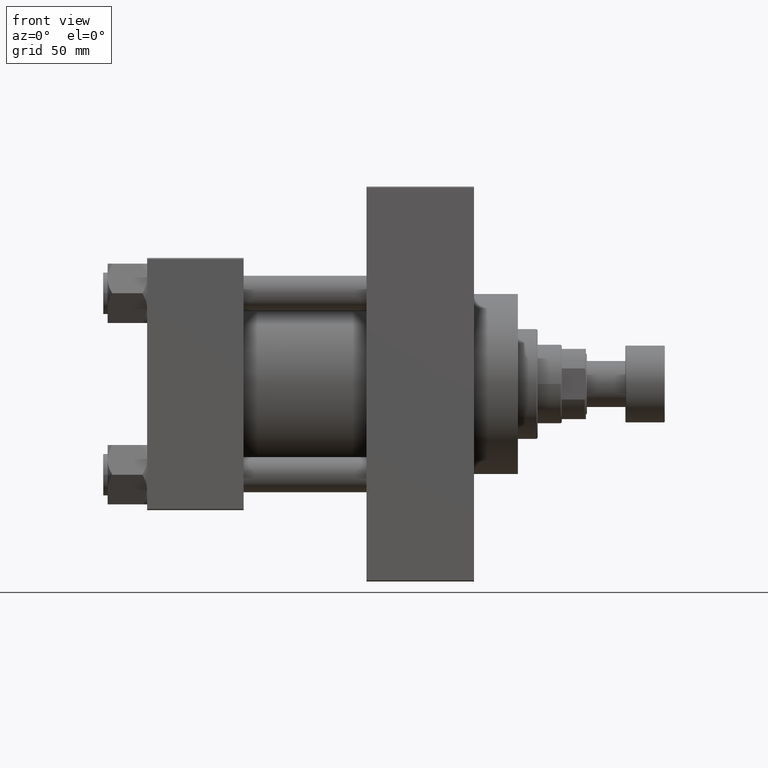
[diagram: clean part render]
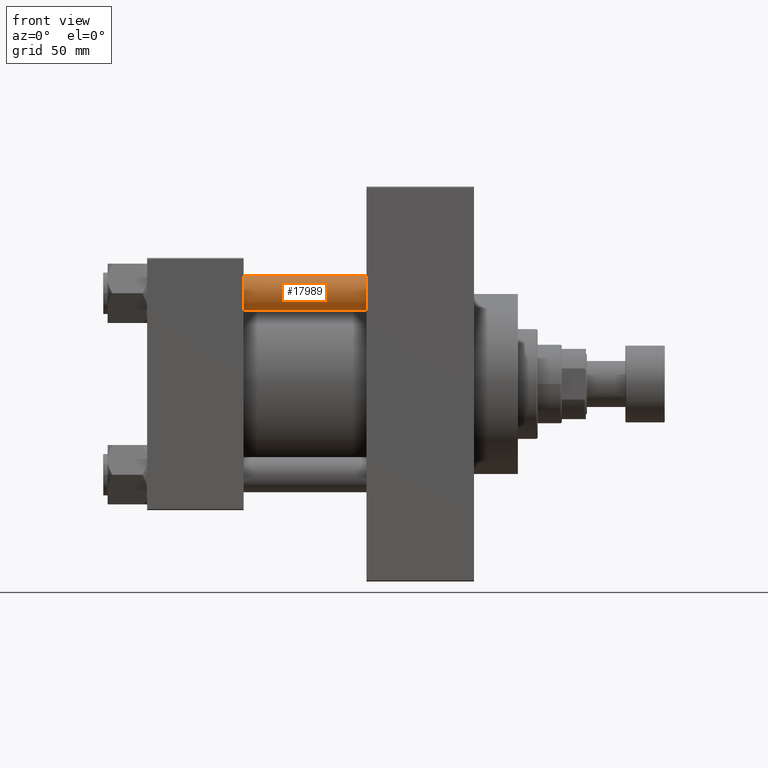
[diagram: same view with one face highlighted and labeled with its STEP entity id]
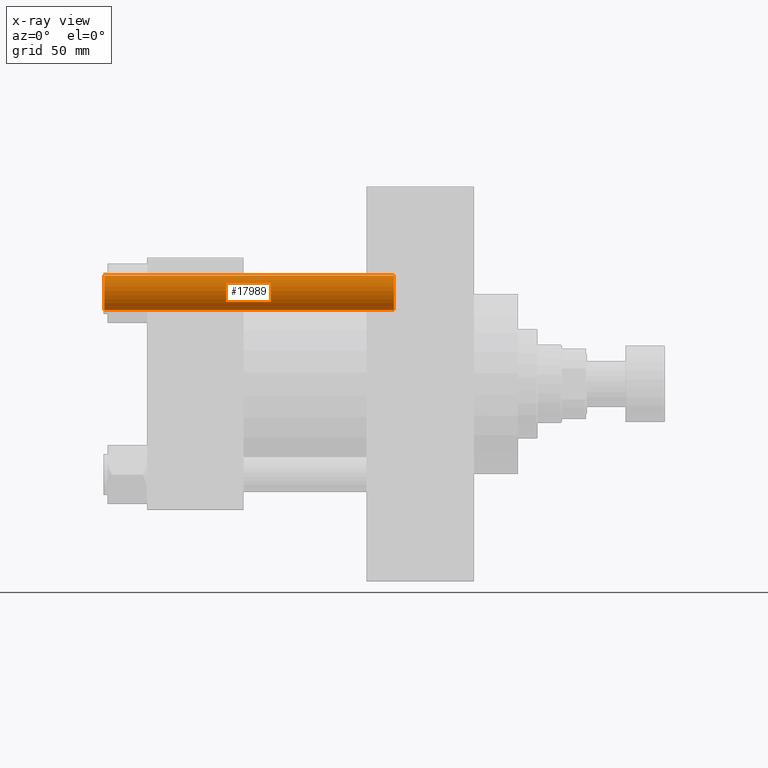
[diagram: x-ray of the same camera — body ghosted, the highlighted face saturated]
A machine part, front view. The second image highlights one B-rep face of the part: STEP entity #17989.
The next image is the same camera in x-ray: the body ghosted, the highlighted face saturated — about 0% of this face is hidden behind the body in this view.
In plain terms, the highlighted cylindrical surface (edge-blend (fillet) strip) has radius 8 mm, axis along (1, 0, 0).
Its self-contained STEP definition (entity closure, byte-faithful):
#3568 = VECTOR ( 'NONE', #43249, 1000.000000000000000 ) ;
#3967 = ORIENTED_EDGE ( 'NONE', *, *, #5943, .T. ) ;
#4111 = AXIS2_PLACEMENT_3D ( 'NONE', #20621, #13575, #24747 ) ;
#4112 = ORIENTED_EDGE ( 'NONE', *, *, #16811, .F. ) ;
#5048 = CYLINDRICAL_SURFACE ( 'NONE', #47881, 8.000000000000000000 ) ;
#5943 = EDGE_CURVE ( 'NONE', #8402, #23435, #13938, .T. ) ;
#6880 = CARTESIAN_POINT ( 'NONE',  ( 8.000000000000000000, 9.797174393178825657E-16, 133.0000000000000000 ) ) ;
#6985 = CARTESIAN_POINT ( 'NONE',  ( -8.000000000000000000, 0.000000000000000000, 133.0000000000000000 ) ) ;
#7716 = CARTESIAN_POINT ( 'NONE',  ( -8.000000000000000000, 0.000000000000000000, 132.5000000000000284 ) ) ;
#8288 = VERTEX_POINT ( 'NONE', #20028 ) ;
#8402 = VERTEX_POINT ( 'NONE', #14433 ) ;
#13111 = DIRECTION ( 'NONE',  ( 1.000000000000000000, 0.000000000000000000, 0.000000000000000000 ) ) ;
#13328 = DIRECTION ( 'NONE',  ( -1.000000000000000000, 0.000000000000000000, 0.000000000000000000 ) ) ;
#13450 = CARTESIAN_POINT ( 'NONE',  ( 8.000000000000000000, 9.797174393178825657E-16, 0.5000000000000004441 ) ) ;
#13575 = DIRECTION ( 'NONE',  ( -0.000000000000000000, -0.000000000000000000, 1.000000000000000000 ) ) ;
#13760 = AXIS2_PLACEMENT_3D ( 'NONE', #35241, #16755, #13111 ) ;
#13938 = LINE ( 'NONE', #6880, #17864 ) ;
#14433 = CARTESIAN_POINT ( 'NONE',  ( 8.000000000000000000, 9.797174393178825657E-16, 132.5000000000000284 ) ) ;
#15471 = EDGE_LOOP ( 'NONE', ( #30884, #3967, #41811, #4112 ) ) ;
#16755 = DIRECTION ( 'NONE',  ( 0.000000000000000000, 0.000000000000000000, -1.000000000000000000 ) ) ;
#16811 = EDGE_CURVE ( 'NONE', #45496, #8288, #31799, .T. ) ;
#17864 = VECTOR ( 'NONE', #29004, 1000.000000000000000 ) ;
#17989 = ADVANCED_FACE ( 'NONE', ( #39122 ), #5048, .T. ) ;
#20028 = CARTESIAN_POINT ( 'NONE',  ( -8.000000000000000000, 0.000000000000000000, 0.5000000000000004441 ) ) ;
#20621 = CARTESIAN_POINT ( 'NONE',  ( 0.000000000000000000, 0.000000000000000000, 0.5000000000000004441 ) ) ;
#23435 = VERTEX_POINT ( 'NONE', #13450 ) ;
#24747 = DIRECTION ( 'NONE',  ( 1.000000000000000000, 0.000000000000000000, 0.000000000000000000 ) ) ;
#27962 = EDGE_CURVE ( 'NONE', #23435, #8288, #39854, .T. ) ;
#29004 = DIRECTION ( 'NONE',  ( -0.000000000000000000, -0.000000000000000000, -1.000000000000000000 ) ) ;
#30884 = ORIENTED_EDGE ( 'NONE', *, *, #41657, .T. ) ;
#31799 = LINE ( 'NONE', #6985, #3568 ) ;
#34711 = CIRCLE ( 'NONE', #13760, 8.000000000000000000 ) ;
#35241 = CARTESIAN_POINT ( 'NONE',  ( 0.000000000000000000, 0.000000000000000000, 132.5000000000000284 ) ) ;
#35454 = CARTESIAN_POINT ( 'NONE',  ( 0.000000000000000000, 0.000000000000000000, 133.0000000000000000 ) ) ;
#38884 = DIRECTION ( 'NONE',  ( -0.000000000000000000, -0.000000000000000000, -1.000000000000000000 ) ) ;
#39122 = FACE_OUTER_BOUND ( 'NONE', #15471, .T. ) ;
#39854 = CIRCLE ( 'NONE', #4111, 8.000000000000000000 ) ;
#41657 = EDGE_CURVE ( 'NONE', #45496, #8402, #34711, .T. ) ;
#41811 = ORIENTED_EDGE ( 'NONE', *, *, #27962, .T. ) ;
#43249 = DIRECTION ( 'NONE',  ( -0.000000000000000000, -0.000000000000000000, -1.000000000000000000 ) ) ;
#45496 = VERTEX_POINT ( 'NONE', #7716 ) ;
#47881 = AXIS2_PLACEMENT_3D ( 'NONE', #35454, #38884, #13328 ) ;